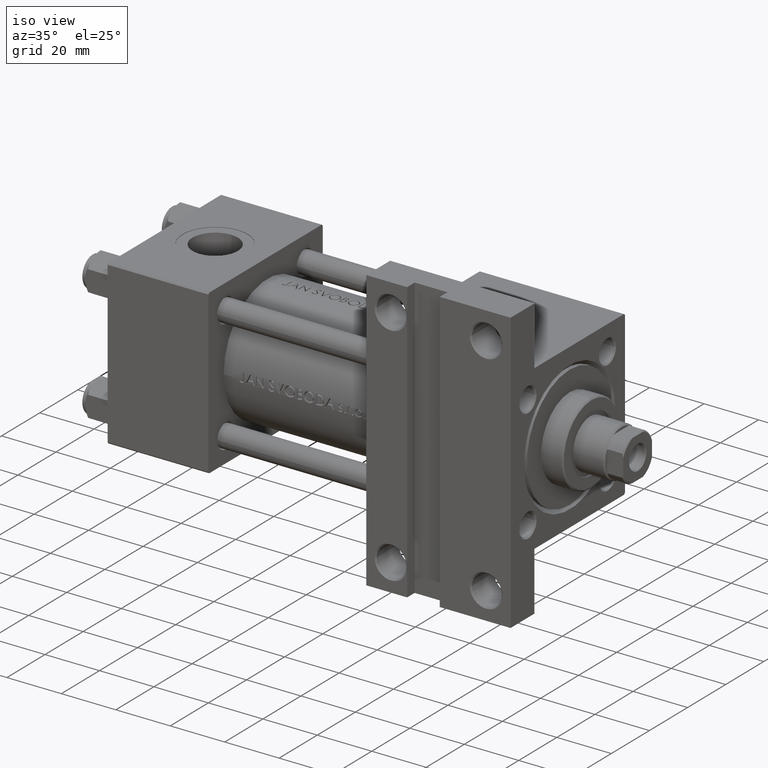
[diagram: clean part render]
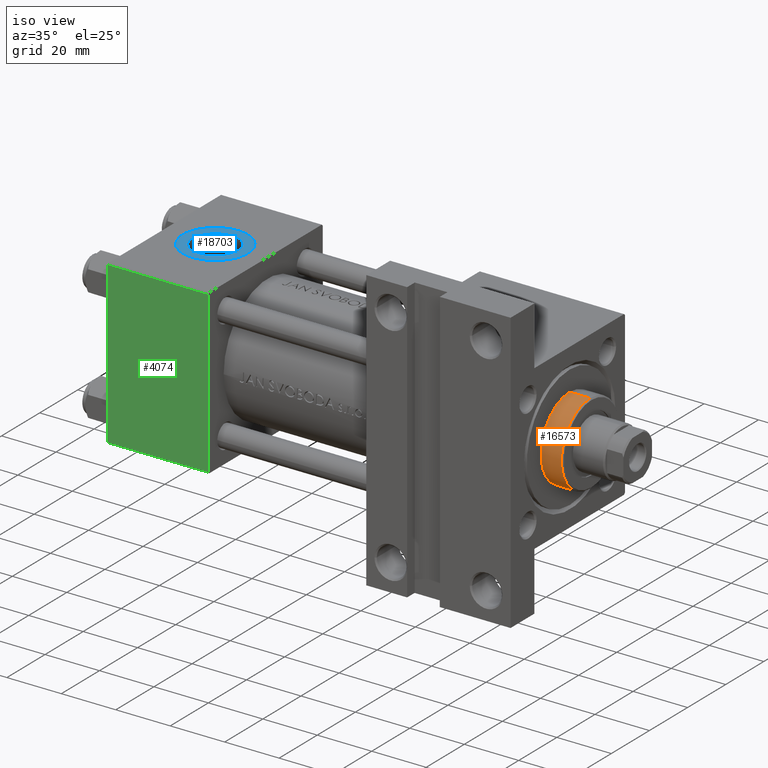
[diagram: same view with three faces highlighted in distinct colors, each labeled with its STEP entity id]
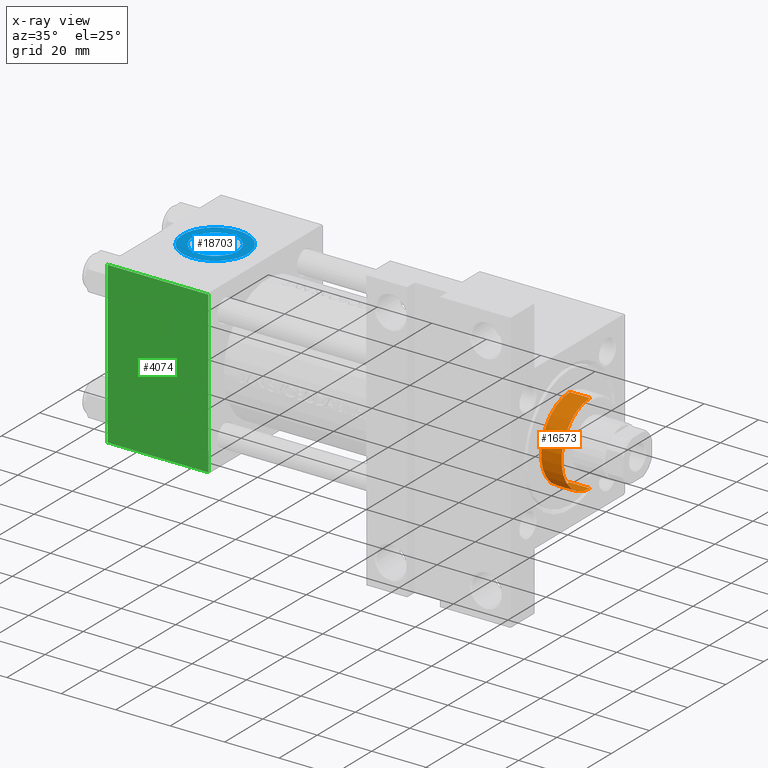
[diagram: x-ray of the same camera — body ghosted, the three highlighted faces saturated]
A machine part, iso view with three faces highlighted in distinct colors.
The next image is the same camera in x-ray (body ghosted, the three faces saturated) — at least one of them is partly hidden behind the body in this view.
Their STEP definitions:

[orange] entity #16573 — the highlighted cylindrical surface (partial cylindrical patch) has radius 15 mm, axis along (-1, 0, 0).
#1308 = AXIS2_PLACEMENT_3D ( 'NONE', #27334, #46694, #24279 ) ;
#3545 = DIRECTION ( 'NONE',  ( -0.000000000000000000, -0.000000000000000000, -1.000000000000000000 ) ) ;
#4858 = CIRCLE ( 'NONE', #31760, 15.00000000000000000 ) ;
#5408 = CIRCLE ( 'NONE', #1308, 15.00000000000000000 ) ;
#7142 = EDGE_LOOP ( 'NONE', ( #48759, #26501, #25719, #12265 ) ) ;
#10580 = EDGE_CURVE ( 'NONE', #18190, #13326, #5408, .T. ) ;
#11729 = CARTESIAN_POINT ( 'NONE',  ( -15.00000000000000000, 0.000000000000000000, 36.20000000000000284 ) ) ;
#12265 = ORIENTED_EDGE ( 'NONE', *, *, #12889, .F. ) ;
#12889 = EDGE_CURVE ( 'NONE', #48907, #13326, #30102, .T. ) ;
#13009 = CYLINDRICAL_SURFACE ( 'NONE', #49066, 15.00000000000000000 ) ;
#13326 = VERTEX_POINT ( 'NONE', #29526 ) ;
#15026 = CARTESIAN_POINT ( 'NONE',  ( -15.00000000000000000, 0.000000000000000000, 36.69999999999999574 ) ) ;
#16573 = ADVANCED_FACE ( 'NONE', ( #40061 ), #13009, .T. ) ;
#18190 = VERTEX_POINT ( 'NONE', #36357 ) ;
#20418 = DIRECTION ( 'NONE',  ( -1.000000000000000000, 0.000000000000000000, 0.000000000000000000 ) ) ;
#20679 = CARTESIAN_POINT ( 'NONE',  ( 0.000000000000000000, 0.000000000000000000, 36.69999999999999574 ) ) ;
#21852 = VECTOR ( 'NONE', #27212, 1000.000000000000000 ) ;
#23581 = CARTESIAN_POINT ( 'NONE',  ( 0.000000000000000000, 0.000000000000000000, 36.20000000000000284 ) ) ;
#24279 = DIRECTION ( 'NONE',  ( 1.000000000000000000, 0.000000000000000000, 0.000000000000000000 ) ) ;
#25719 = ORIENTED_EDGE ( 'NONE', *, *, #10580, .T. ) ;
#26239 = VERTEX_POINT ( 'NONE', #45221 ) ;
#26501 = ORIENTED_EDGE ( 'NONE', *, *, #32150, .T. ) ;
#26915 = DIRECTION ( 'NONE',  ( 0.000000000000000000, 0.000000000000000000, -1.000000000000000000 ) ) ;
#27212 = DIRECTION ( 'NONE',  ( -0.000000000000000000, -0.000000000000000000, -1.000000000000000000 ) ) ;
#27334 = CARTESIAN_POINT ( 'NONE',  ( 0.000000000000000000, 0.000000000000000000, 28.69999999999999929 ) ) ;
#29526 = CARTESIAN_POINT ( 'NONE',  ( -15.00000000000000000, 0.000000000000000000, 28.69999999999999929 ) ) ;
#30102 = LINE ( 'NONE', #15026, #33837 ) ;
#31760 = AXIS2_PLACEMENT_3D ( 'NONE', #23581, #26915, #43203 ) ;
#31785 = CARTESIAN_POINT ( 'NONE',  ( 15.00000000000000000, 1.836970198721029589E-15, 36.69999999999999574 ) ) ;
#32150 = EDGE_CURVE ( 'NONE', #26239, #18190, #47320, .T. ) ;
#32424 = EDGE_CURVE ( 'NONE', #48907, #26239, #4858, .T. ) ;
#33837 = VECTOR ( 'NONE', #3545, 1000.000000000000000 ) ;
#36357 = CARTESIAN_POINT ( 'NONE',  ( 15.00000000000000000, 1.836970198721029589E-15, 28.69999999999999929 ) ) ;
#40061 = FACE_OUTER_BOUND ( 'NONE', #7142, .T. ) ;
#43203 = DIRECTION ( 'NONE',  ( 1.000000000000000000, 0.000000000000000000, 0.000000000000000000 ) ) ;
#45221 = CARTESIAN_POINT ( 'NONE',  ( 15.00000000000000000, 1.836970198721029589E-15, 36.20000000000000284 ) ) ;
#46694 = DIRECTION ( 'NONE',  ( 0.000000000000000000, 0.000000000000000000, 1.000000000000000000 ) ) ;
#47320 = LINE ( 'NONE', #31785, #21852 ) ;
#47440 = DIRECTION ( 'NONE',  ( -0.000000000000000000, -0.000000000000000000, -1.000000000000000000 ) ) ;
#48759 = ORIENTED_EDGE ( 'NONE', *, *, #32424, .T. ) ;
#48907 = VERTEX_POINT ( 'NONE', #11729 ) ;
#49066 = AXIS2_PLACEMENT_3D ( 'NONE', #20679, #47440, #20418 ) ;

[blue] entity #18703 — the highlighted planar face has unit normal (0, -0, 1).
#112 = DIRECTION ( 'NONE',  ( 0.000000000000000000, -1.000000000000000000, -8.673617379884036705E-17 ) ) ;
#555 = DIRECTION ( 'NONE',  ( 0.000000000000000000, 0.000000000000000000, -1.000000000000000000 ) ) ;
#702 = AXIS2_PLACEMENT_3D ( 'NONE', #43177, #9250, #555 ) ;
#1108 = AXIS2_PLACEMENT_3D ( 'NONE', #41130, #24838, #16924 ) ;
#1114 = CARTESIAN_POINT ( 'NONE',  ( 18.50000000000000000, -29.80000000000000071, 1.734723475976807403E-17 ) ) ;
#4839 = CARTESIAN_POINT ( 'NONE',  ( 18.50000000000000000, -29.80000000000000071, 8.330000000000001847 ) ) ;
#5634 = EDGE_CURVE ( 'NONE', #5903, #33170, #11298, .T. ) ;
#5903 = VERTEX_POINT ( 'NONE', #4839 ) ;
#7140 = AXIS2_PLACEMENT_3D ( 'NONE', #1114, #24873, #36590 ) ;
#9250 = DIRECTION ( 'NONE',  ( 0.000000000000000000, -1.000000000000000000, -8.673617379884036705E-17 ) ) ;
#11298 = CIRCLE ( 'NONE', #33283, 8.330000000000001847 ) ;
#12350 = AXIS2_PLACEMENT_3D ( 'NONE', #31508, #112, #15697 ) ;
#14070 = ORIENTED_EDGE ( 'NONE', *, *, #49592, .T. ) ;
#15062 = CARTESIAN_POINT ( 'NONE',  ( 18.50000000000000000, -29.80000000000000071, -12.00000000000000178 ) ) ;
#15697 = DIRECTION ( 'NONE',  ( 0.000000000000000000, 0.000000000000000000, -1.000000000000000000 ) ) ;
#16924 = DIRECTION ( 'NONE',  ( 0.000000000000000000, 8.673617379884036705E-17, -1.000000000000000000 ) ) ;
#17020 = EDGE_LOOP ( 'NONE', ( #45751, #39811 ) ) ;
#17137 = CARTESIAN_POINT ( 'NONE',  ( 18.50000000000000000, -29.80000000000000071, 1.734723475976808635E-17 ) ) ;
#17680 = FACE_BOUND ( 'NONE', #17020, .T. ) ;
#18703 = ADVANCED_FACE ( 'NONE', ( #17680, #25096 ), #48765, .T. ) ;
#24550 = DIRECTION ( 'NONE',  ( 0.000000000000000000, -1.000000000000000000, -8.673617379884036705E-17 ) ) ;
#24838 = DIRECTION ( 'NONE',  ( 0.000000000000000000, -1.000000000000000000, -8.673617379884036705E-17 ) ) ;
#24873 = DIRECTION ( 'NONE',  ( 0.000000000000000000, -1.000000000000000000, -8.673617379884036705E-17 ) ) ;
#25096 = FACE_OUTER_BOUND ( 'NONE', #26540, .T. ) ;
#26540 = EDGE_LOOP ( 'NONE', ( #14070, #47856 ) ) ;
#29997 = EDGE_CURVE ( 'NONE', #47031, #33286, #33166, .T. ) ;
#31508 = CARTESIAN_POINT ( 'NONE',  ( 18.50000000000000000, -29.80000000000000071, 1.734723475976808635E-17 ) ) ;
#31913 = CIRCLE ( 'NONE', #12350, 8.330000000000001847 ) ;
#33166 = CIRCLE ( 'NONE', #7140, 12.00000000000000178 ) ;
#33170 = VERTEX_POINT ( 'NONE', #48484 ) ;
#33283 = AXIS2_PLACEMENT_3D ( 'NONE', #17137, #24550, #40850 ) ;
#33286 = VERTEX_POINT ( 'NONE', #15062 ) ;
#36590 = DIRECTION ( 'NONE',  ( 0.000000000000000000, 0.000000000000000000, -1.000000000000000000 ) ) ;
#36817 = CARTESIAN_POINT ( 'NONE',  ( 18.50000000000000000, -29.80000000000000071, 12.00000000000000178 ) ) ;
#39811 = ORIENTED_EDGE ( 'NONE', *, *, #5634, .F. ) ;
#40804 = EDGE_CURVE ( 'NONE', #33170, #5903, #31913, .T. ) ;
#40850 = DIRECTION ( 'NONE',  ( 0.000000000000000000, 0.000000000000000000, -1.000000000000000000 ) ) ;
#41130 = CARTESIAN_POINT ( 'NONE',  ( 18.50000000000000000, -29.80000000000000071, 1.734723475976807403E-17 ) ) ;
#43177 = CARTESIAN_POINT ( 'NONE',  ( 18.50000000000000000, -29.80000000000000071, 1.734723475976807403E-17 ) ) ;
#45751 = ORIENTED_EDGE ( 'NONE', *, *, #40804, .F. ) ;
#46324 = CIRCLE ( 'NONE', #702, 12.00000000000000178 ) ;
#47031 = VERTEX_POINT ( 'NONE', #36817 ) ;
#47856 = ORIENTED_EDGE ( 'NONE', *, *, #29997, .T. ) ;
#48484 = CARTESIAN_POINT ( 'NONE',  ( 18.50000000000000000, -29.80000000000000071, -8.330000000000001847 ) ) ;
#48765 = PLANE ( 'NONE',  #1108 ) ;
#49592 = EDGE_CURVE ( 'NONE', #33286, #47031, #46324, .T. ) ;

[green] entity #4074 — the highlighted planar face has unit normal (0, -1, -0).
#4074 = ADVANCED_FACE ( 'NONE', ( #26423 ), #49091, .T. ) ;
#7029 = DIRECTION ( 'NONE',  ( 0.000000000000000000, 1.156482317317871725E-16, -1.000000000000000000 ) ) ;
#7114 = EDGE_CURVE ( 'NONE', #43298, #41622, #46418, .T. ) ;
#8785 = VECTOR ( 'NONE', #41931, 1000.000000000000000 ) ;
#10121 = CARTESIAN_POINT ( 'NONE',  ( 37.00000000000000000, 29.49999999999997868, -30.00000000000000000 ) ) ;
#10133 = EDGE_CURVE ( 'NONE', #34138, #26412, #40944, .T. ) ;
#13887 = CARTESIAN_POINT ( 'NONE',  ( 0.000000000000000000, -29.50000000000001066, -30.00000000000000711 ) ) ;
#17865 = VECTOR ( 'NONE', #22734, 1000.000000000000000 ) ;
#19469 = EDGE_CURVE ( 'NONE', #43298, #26412, #29398, .T. ) ;
#22084 = CARTESIAN_POINT ( 'NONE',  ( 37.00000000000000000, 29.99999999999999289, -30.00000000000000000 ) ) ;
#22734 = DIRECTION ( 'NONE',  ( 1.000000000000000000, 0.000000000000000000, 0.000000000000000000 ) ) ;
#25927 = AXIS2_PLACEMENT_3D ( 'NONE', #22084, #7029, #37632 ) ;
#26412 = VERTEX_POINT ( 'NONE', #28107 ) ;
#26423 = FACE_OUTER_BOUND ( 'NONE', #30927, .T. ) ;
#28107 = CARTESIAN_POINT ( 'NONE',  ( 0.000000000000000000, -29.50000000000000000, -30.00000000000000711 ) ) ;
#29288 = ORIENTED_EDGE ( 'NONE', *, *, #7114, .T. ) ;
#29398 = LINE ( 'NONE', #44953, #32958 ) ;
#29454 = DIRECTION ( 'NONE',  ( -1.000000000000000000, 0.000000000000000000, 0.000000000000000000 ) ) ;
#30643 = VECTOR ( 'NONE', #29454, 1000.000000000000000 ) ;
#30841 = EDGE_CURVE ( 'NONE', #41622, #34138, #33266, .T. ) ;
#30927 = EDGE_LOOP ( 'NONE', ( #44827, #29288, #33922, #39112 ) ) ;
#31133 = CARTESIAN_POINT ( 'NONE',  ( 37.00000000000000000, 29.49999999999997868, -30.00000000000000000 ) ) ;
#32958 = VECTOR ( 'NONE', #49279, 1000.000000000000000 ) ;
#33266 = LINE ( 'NONE', #45244, #8785 ) ;
#33922 = ORIENTED_EDGE ( 'NONE', *, *, #30841, .T. ) ;
#34138 = VERTEX_POINT ( 'NONE', #47738 ) ;
#37632 = DIRECTION ( 'NONE',  ( 0.000000000000000000, 1.000000000000000000, 1.156482317317871725E-16 ) ) ;
#39112 = ORIENTED_EDGE ( 'NONE', *, *, #10133, .T. ) ;
#40944 = LINE ( 'NONE', #13887, #30643 ) ;
#41622 = VERTEX_POINT ( 'NONE', #10121 ) ;
#41931 = DIRECTION ( 'NONE',  ( 0.000000000000000000, -1.000000000000000000, -1.156482317317871725E-16 ) ) ;
#43298 = VERTEX_POINT ( 'NONE', #44658 ) ;
#44658 = CARTESIAN_POINT ( 'NONE',  ( 0.000000000000000000, 29.49999999999997868, -30.00000000000000000 ) ) ;
#44827 = ORIENTED_EDGE ( 'NONE', *, *, #19469, .F. ) ;
#44953 = CARTESIAN_POINT ( 'NONE',  ( 0.000000000000000000, 29.99999999999999289, -30.00000000000000000 ) ) ;
#45244 = CARTESIAN_POINT ( 'NONE',  ( 37.00000000000000000, 29.99999999999999289, -30.00000000000000000 ) ) ;
#46418 = LINE ( 'NONE', #31133, #17865 ) ;
#47738 = CARTESIAN_POINT ( 'NONE',  ( 37.00000000000000000, -29.50000000000000000, -30.00000000000000711 ) ) ;
#49091 = PLANE ( 'NONE',  #25927 ) ;
#49279 = DIRECTION ( 'NONE',  ( 0.000000000000000000, -1.000000000000000000, -1.156482317317871725E-16 ) ) ;